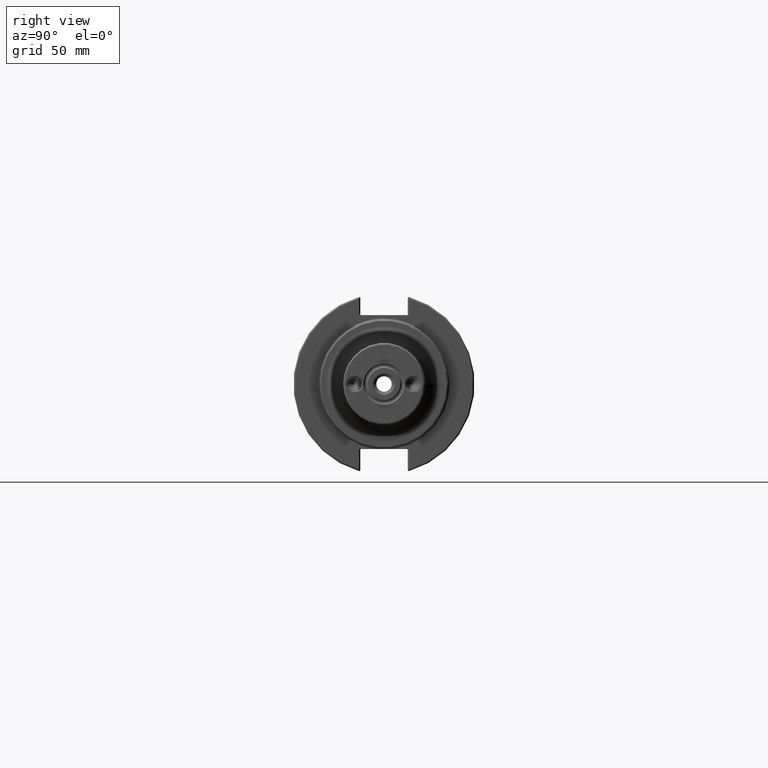
[diagram: clean part render]
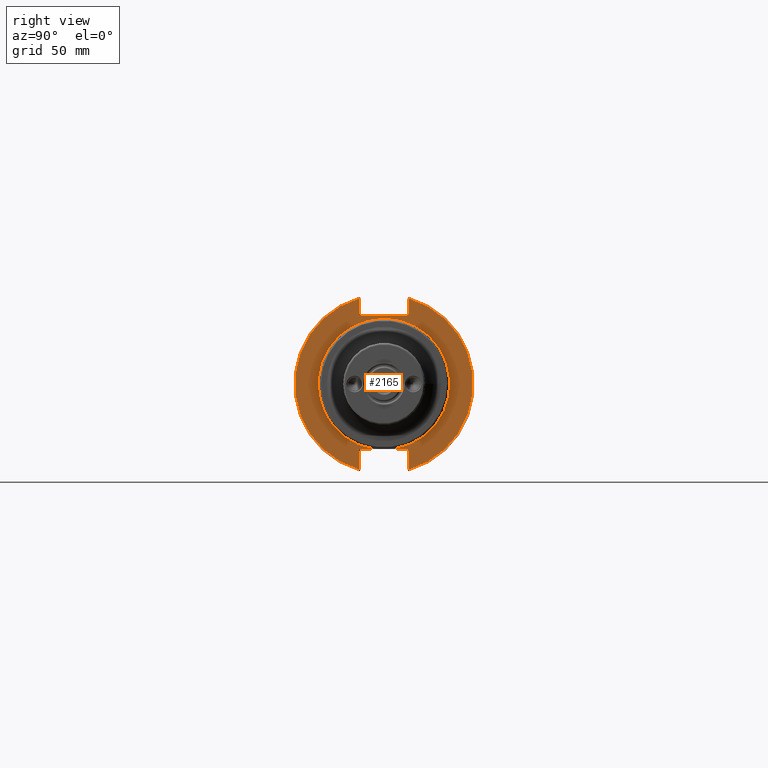
[diagram: same view with one face highlighted and labeled with its STEP entity id]
A machine part, right view. The second image highlights one B-rep face of the part: STEP entity #2165.
In plain terms, the highlighted planar face has unit normal (1, 0, 0).
Its self-contained STEP definition (entity closure, byte-faithful):
#117=LINE('',#4369,#211);
#125=LINE('',#4397,#219);
#135=LINE('',#4430,#229);
#143=LINE('',#4458,#237);
#147=LINE('',#4495,#241);
#149=LINE('',#4521,#243);
#150=LINE('',#4523,#244);
#211=VECTOR('',#2847,0.393700787401575);
#219=VECTOR('',#2877,0.393700787401575);
#229=VECTOR('',#2911,0.393700787401575);
#237=VECTOR('',#2941,0.393700787401575);
#241=VECTOR('',#2975,0.393700787401575);
#243=VECTOR('',#2997,0.393700787401575);
#244=VECTOR('',#3000,0.393700787401575);
#383=ELLIPSE('',#2363,0.0282842712474619,0.02);
#387=ELLIPSE('',#2374,0.0282842712474619,0.02);
#394=ELLIPSE('',#2390,0.028284271247462,0.02);
#398=ELLIPSE('',#2401,0.0282842712474619,0.02);
#432=PLANE('',#2429);
#514=CIRCLE('',#2224,1.405);
#613=CIRCLE('',#2427,1.9075);
#615=CIRCLE('',#2430,1.9075);
#732=FACE_OUTER_BOUND('',#922,.T.);
#922=EDGE_LOOP('',(#1884,#1885,#1886,#1887,#1888,#1889,#1890,#1891,#1892,
#1893,#1894,#1895,#1896,#1897));
#994=VERTEX_POINT('',#3179);
#995=VERTEX_POINT('',#3180);
#1125=VERTEX_POINT('',#4347);
#1126=VERTEX_POINT('',#4349);
#1132=VERTEX_POINT('',#4367);
#1134=VERTEX_POINT('',#4375);
#1135=VERTEX_POINT('',#4376);
#1141=VERTEX_POINT('',#4395);
#1148=VERTEX_POINT('',#4417);
#1149=VERTEX_POINT('',#4419);
#1152=VERTEX_POINT('',#4429);
#1158=VERTEX_POINT('',#4447);
#1159=VERTEX_POINT('',#4449);
#1161=VERTEX_POINT('',#4457);
#1196=EDGE_CURVE('',#994,#995,#514,.T.);
#1359=EDGE_CURVE('',#1125,#1126,#383,.T.);
#1369=EDGE_CURVE('',#1132,#1125,#117,.T.);
#1372=EDGE_CURVE('',#1134,#1135,#387,.T.);
#1383=EDGE_CURVE('',#1141,#1134,#125,.T.);
#1394=EDGE_CURVE('',#1148,#1149,#394,.T.);
#1399=EDGE_CURVE('',#1149,#1152,#135,.T.);
#1409=EDGE_CURVE('',#1158,#1159,#398,.T.);
#1413=EDGE_CURVE('',#1159,#1161,#143,.T.);
#1427=EDGE_CURVE('',#1158,#1126,#147,.T.);
#1433=EDGE_CURVE('',#1152,#1132,#613,.T.);
#1436=EDGE_CURVE('',#994,#1135,#149,.T.);
#1437=EDGE_CURVE('',#1161,#1141,#615,.T.);
#1438=EDGE_CURVE('',#1148,#995,#150,.T.);
#1884=ORIENTED_EDGE('',*,*,#1196,.F.);
#1885=ORIENTED_EDGE('',*,*,#1436,.T.);
#1886=ORIENTED_EDGE('',*,*,#1372,.F.);
#1887=ORIENTED_EDGE('',*,*,#1383,.F.);
#1888=ORIENTED_EDGE('',*,*,#1437,.F.);
#1889=ORIENTED_EDGE('',*,*,#1413,.F.);
#1890=ORIENTED_EDGE('',*,*,#1409,.F.);
#1891=ORIENTED_EDGE('',*,*,#1427,.T.);
#1892=ORIENTED_EDGE('',*,*,#1359,.F.);
#1893=ORIENTED_EDGE('',*,*,#1369,.F.);
#1894=ORIENTED_EDGE('',*,*,#1433,.F.);
#1895=ORIENTED_EDGE('',*,*,#1399,.F.);
#1896=ORIENTED_EDGE('',*,*,#1394,.F.);
#1897=ORIENTED_EDGE('',*,*,#1438,.T.);
#2165=ADVANCED_FACE('',(#732),#432,.T.);
#2224=AXIS2_PLACEMENT_3D('',#3192,#2497,#2498);
#2363=AXIS2_PLACEMENT_3D('',#4350,#2826,#2827);
#2374=AXIS2_PLACEMENT_3D('',#4377,#2855,#2856);
#2390=AXIS2_PLACEMENT_3D('',#4420,#2900,#2901);
#2401=AXIS2_PLACEMENT_3D('',#4450,#2931,#2932);
#2427=AXIS2_PLACEMENT_3D('',#4514,#2991,#2992);
#2429=AXIS2_PLACEMENT_3D('',#4520,#2995,#2996);
#2430=AXIS2_PLACEMENT_3D('',#4522,#2998,#2999);
#2497=DIRECTION('center_axis',(1.,0.,0.));
#2498=DIRECTION('ref_axis',(0.,-1.,1.22464679914735E-16));
#2826=DIRECTION('center_axis',(1.,0.,0.));
#2827=DIRECTION('ref_axis',(0.,-1.,1.93170824149086E-16));
#2847=DIRECTION('',(0.,0.,-1.));
#2855=DIRECTION('center_axis',(1.,0.,0.));
#2856=DIRECTION('ref_axis',(0.,1.,-1.93170824149086E-16));
#2877=DIRECTION('',(0.,0.,1.));
#2900=DIRECTION('center_axis',(1.,0.,0.));
#2901=DIRECTION('ref_axis',(-3.41480999208029E-17,-1.,-9.65854120745431E-17));
#2911=DIRECTION('',(0.,0.,-1.));
#2931=DIRECTION('center_axis',(1.,0.,0.));
#2932=DIRECTION('ref_axis',(0.,1.,1.93170824149086E-16));
#2941=DIRECTION('',(0.,0.,1.));
#2975=DIRECTION('',(0.,-1.,6.01790140173613E-31));
#2991=DIRECTION('center_axis',(-1.,0.,0.));
#2992=DIRECTION('ref_axis',(0.,-1.,0.));
#2995=DIRECTION('center_axis',(1.,0.,0.));
#2996=DIRECTION('ref_axis',(0.,0.,-1.));
#2997=DIRECTION('',(0.,1.,4.17909819565459E-33));
#2998=DIRECTION('center_axis',(-1.,0.,0.));
#2999=DIRECTION('ref_axis',(0.,1.,0.));
#3000=DIRECTION('',(0.,1.,4.17909819565459E-33));
#3179=CARTESIAN_POINT('',(0.75,0.217901353827828,-1.388));
#3180=CARTESIAN_POINT('',(0.75,-0.217901353827828,-1.388));
#3192=CARTESIAN_POINT('Origin',(0.75,0.,0.));
#4347=CARTESIAN_POINT('',(0.75,-0.532499999999821,1.492));
#4349=CARTESIAN_POINT('',(0.75,-0.504215728752359,1.472));
#4350=CARTESIAN_POINT('Origin',(0.75,-0.504215728752359,1.492));
#4367=CARTESIAN_POINT('',(0.75,-0.532499999999821,1.83166590840147));
#4369=CARTESIAN_POINT('',(0.75,-0.532499999999821,0.736));
#4375=CARTESIAN_POINT('',(0.75,0.532500000000284,-1.408));
#4376=CARTESIAN_POINT('',(0.75,0.504215728752822,-1.388));
#4377=CARTESIAN_POINT('Origin',(0.75,0.504215728752822,-1.408));
#4395=CARTESIAN_POINT('',(0.75,0.532500000000284,-1.83166590840134));
#4397=CARTESIAN_POINT('',(0.75,0.532500000000284,-0.694));
#4417=CARTESIAN_POINT('',(0.75,-0.504215728752254,-1.388));
#4419=CARTESIAN_POINT('',(0.75,-0.532499999999715,-1.408));
#4420=CARTESIAN_POINT('Origin',(0.75,-0.504215728752254,-1.408));
#4429=CARTESIAN_POINT('',(0.75,-0.532499999999715,-1.8316659084015));
#4430=CARTESIAN_POINT('',(0.75,-0.532499999999715,-0.694));
#4447=CARTESIAN_POINT('',(0.75,0.504215728752717,1.472));
#4449=CARTESIAN_POINT('',(0.75,0.532500000000179,1.492));
#4450=CARTESIAN_POINT('Origin',(0.75,0.504215728752717,1.492));
#4457=CARTESIAN_POINT('',(0.75,0.532500000000179,1.83166590840137));
#4458=CARTESIAN_POINT('',(0.75,0.532500000000179,0.736));
#4495=CARTESIAN_POINT('',(0.75,0.828125000000089,1.472));
#4514=CARTESIAN_POINT('Origin',(0.75,0.,0.));
#4520=CARTESIAN_POINT('Origin',(0.75,1.65625,0.));
#4521=CARTESIAN_POINT('',(0.75,0.828125000000135,-1.388));
#4522=CARTESIAN_POINT('Origin',(0.75,0.,0.));
#4523=CARTESIAN_POINT('',(0.75,0.828125000000135,-1.388));